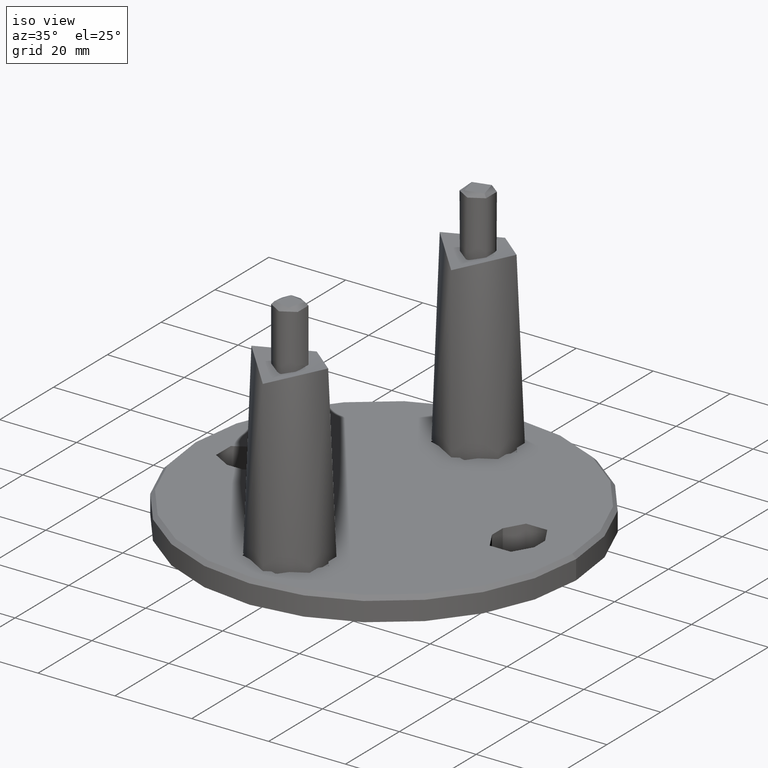
[diagram: clean part render]
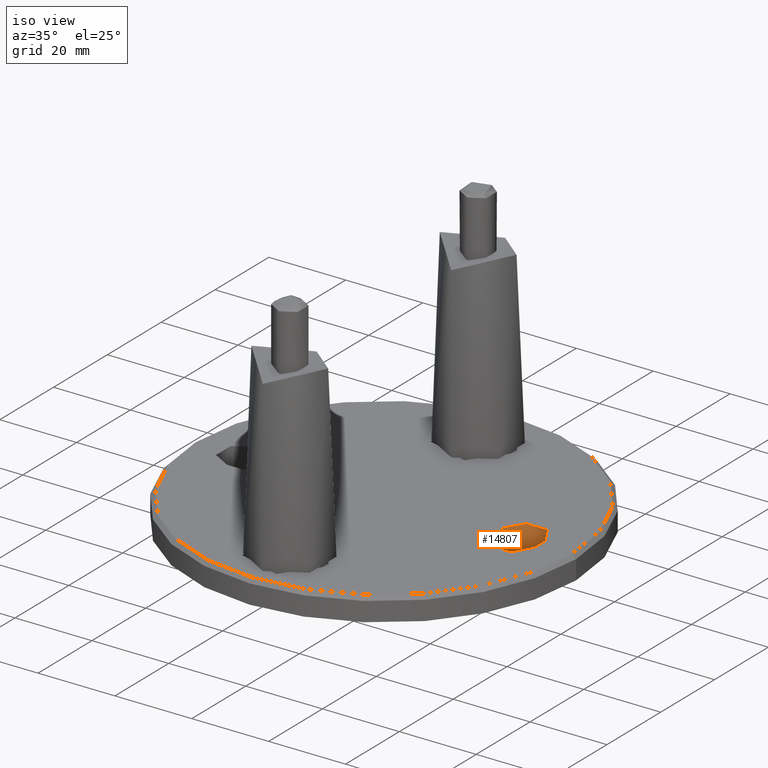
[diagram: same view with one face highlighted and labeled with its STEP entity id]
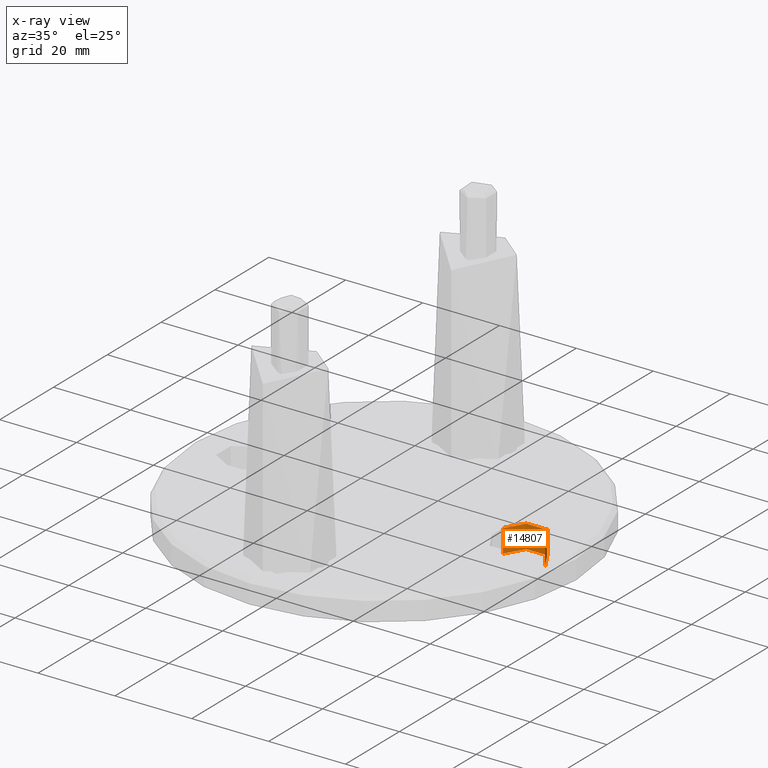
[diagram: x-ray of the same camera — body ghosted, the highlighted face saturated]
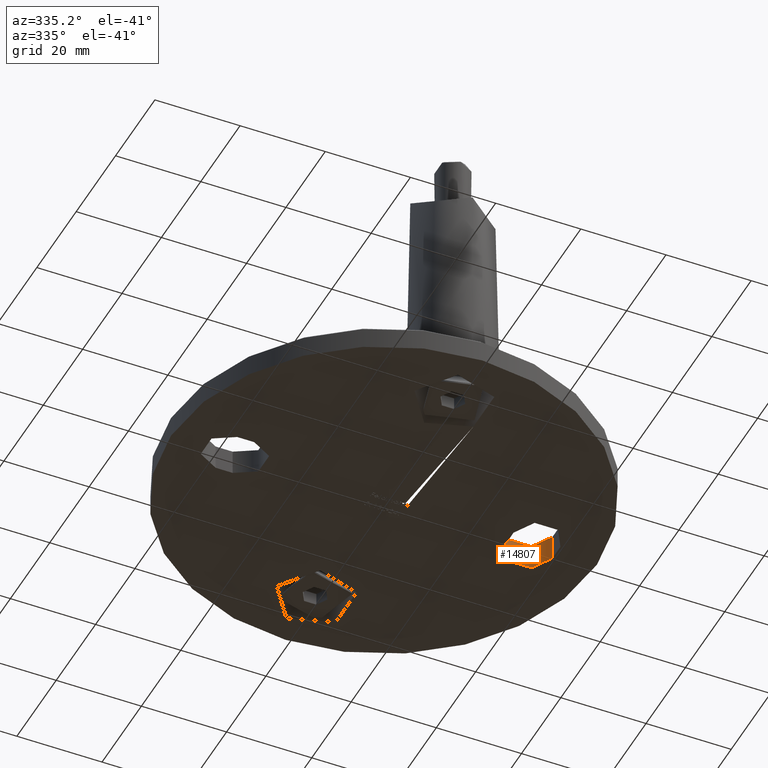
[diagram: same view with one face highlighted and labeled with its STEP entity id]
A machine part, iso view. The second image highlights one B-rep face of the part: STEP entity #14807.
The next image is the same camera in x-ray: the body ghosted, the highlighted face saturated — about 0% of this face is hidden behind the body in this view.
A second angle (auxiliary view) of the same face is appended — the face is thin or edge-on in the first view.
In plain terms, the highlighted cylindrical surface (edge-blend (fillet) strip) has radius 5.5 mm, axis along (-0, -0, -1).
Its self-contained STEP definition (entity closure, byte-faithful):
#93 = DIRECTION ( 'NONE',  ( -1.000000000000000000, 0.0000000000000000000, 0.0000000000000000000 ) ) ;
#156 = CARTESIAN_POINT ( 'NONE',  ( 29.50000000000000400, 2.000000000000001800, 6.000000000000000000 ) ) ;
#389 = ORIENTED_EDGE ( 'NONE', *, *, #10577, .T. ) ;
#442 = CARTESIAN_POINT ( 'NONE',  ( 40.50000000000000700, 2.000000000000001800, 0.0000000000000000000 ) ) ;
#622 = VECTOR ( 'NONE', #3961, 1000.000000000000000 ) ;
#1835 = LINE ( 'NONE', #11639, #622 ) ;
#2195 = CARTESIAN_POINT ( 'NONE',  ( 40.50000000000000700, 2.000000000000001800, 6.000000000000000000 ) ) ;
#2498 = ORIENTED_EDGE ( 'NONE', *, *, #10392, .F. ) ;
#2530 = VERTEX_POINT ( 'NONE', #15152 ) ;
#2612 = FACE_OUTER_BOUND ( 'NONE', #16016, .T. ) ;
#2982 = VERTEX_POINT ( 'NONE', #2195 ) ;
#3873 = CIRCLE ( 'NONE', #10276, 5.500000000000005300 ) ;
#3961 = DIRECTION ( 'NONE',  ( -0.0000000000000000000, -0.0000000000000000000, -1.000000000000000000 ) ) ;
#6489 = CARTESIAN_POINT ( 'NONE',  ( 40.50000000000000700, 2.000000000000001800, 6.000000000000000000 ) ) ;
#6636 = AXIS2_PLACEMENT_3D ( 'NONE', #13983, #15223, #93 ) ;
#7518 = DIRECTION ( 'NONE',  ( 0.0000000000000000000, 0.0000000000000000000, 1.000000000000000000 ) ) ;
#8488 = VERTEX_POINT ( 'NONE', #442 ) ;
#8851 = EDGE_CURVE ( 'NONE', #2982, #8488, #8863, .T. ) ;
#8863 = LINE ( 'NONE', #6489, #10609 ) ;
#9028 = ORIENTED_EDGE ( 'NONE', *, *, #8851, .F. ) ;
#9140 = AXIS2_PLACEMENT_3D ( 'NONE', #15239, #7518, #12633 ) ;
#9200 = CIRCLE ( 'NONE', #9140, 5.500000000000005300 ) ;
#9284 = CARTESIAN_POINT ( 'NONE',  ( 35.00000000000000000, 2.000000000000000900, 0.0000000000000000000 ) ) ;
#10257 = DIRECTION ( 'NONE',  ( -0.0000000000000000000, -0.0000000000000000000, -1.000000000000000000 ) ) ;
#10276 = AXIS2_PLACEMENT_3D ( 'NONE', #9284, #14301, #10430 ) ;
#10392 = EDGE_CURVE ( 'NONE', #8488, #2530, #3873, .T. ) ;
#10430 = DIRECTION ( 'NONE',  ( 1.000000000000000000, 0.0000000000000000000, 0.0000000000000000000 ) ) ;
#10577 = EDGE_CURVE ( 'NONE', #2982, #11689, #9200, .T. ) ;
#10609 = VECTOR ( 'NONE', #10257, 1000.000000000000000 ) ;
#11639 = CARTESIAN_POINT ( 'NONE',  ( 29.50000000000000400, 2.000000000000001800, 6.000000000000000000 ) ) ;
#11689 = VERTEX_POINT ( 'NONE', #156 ) ;
#12633 = DIRECTION ( 'NONE',  ( 1.000000000000000000, 0.0000000000000000000, 0.0000000000000000000 ) ) ;
#12881 = ORIENTED_EDGE ( 'NONE', *, *, #16165, .T. ) ;
#13983 = CARTESIAN_POINT ( 'NONE',  ( 35.00000000000000000, 2.000000000000000900, 6.000000000000000000 ) ) ;
#14301 = DIRECTION ( 'NONE',  ( 0.0000000000000000000, 0.0000000000000000000, 1.000000000000000000 ) ) ;
#14807 = ADVANCED_FACE ( 'NONE', ( #2612 ), #15476, .F. ) ;
#15152 = CARTESIAN_POINT ( 'NONE',  ( 29.50000000000000400, 2.000000000000001800, 0.0000000000000000000 ) ) ;
#15223 = DIRECTION ( 'NONE',  ( -0.0000000000000000000, -0.0000000000000000000, -1.000000000000000000 ) ) ;
#15239 = CARTESIAN_POINT ( 'NONE',  ( 35.00000000000000000, 2.000000000000000900, 6.000000000000000000 ) ) ;
#15476 = CYLINDRICAL_SURFACE ( 'NONE', #6636, 5.500000000000005300 ) ;
#16016 = EDGE_LOOP ( 'NONE', ( #2498, #9028, #389, #12881 ) ) ;
#16165 = EDGE_CURVE ( 'NONE', #11689, #2530, #1835, .T. ) ;